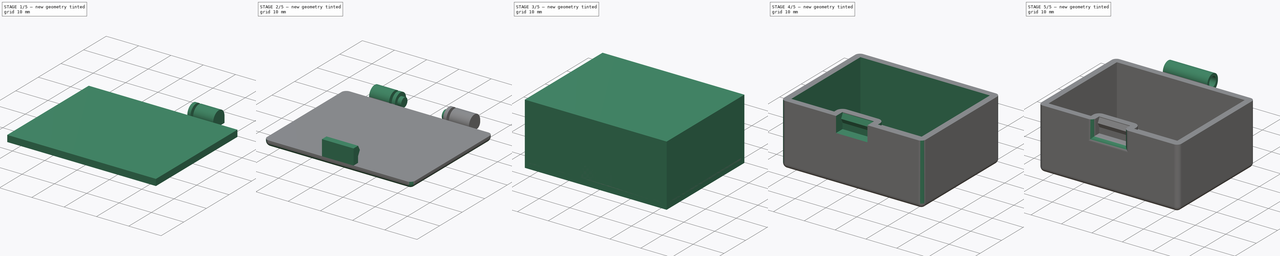
[diagram: build sequence overview — one tinted view per stage of 5, left to right]
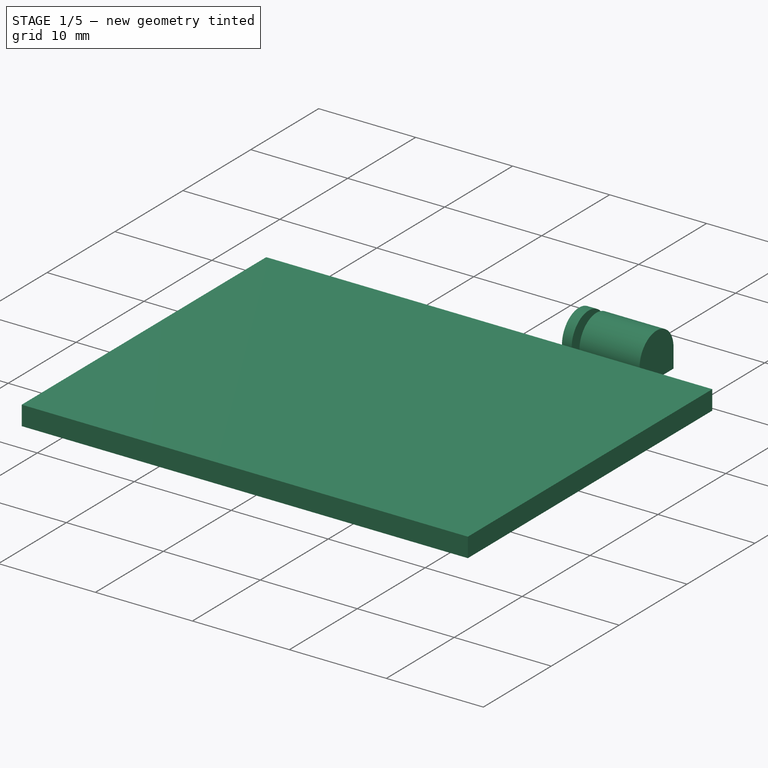
[diagram: stage 1 of 5 — iso view after this stage's code; geometry added in this stage tinted green]
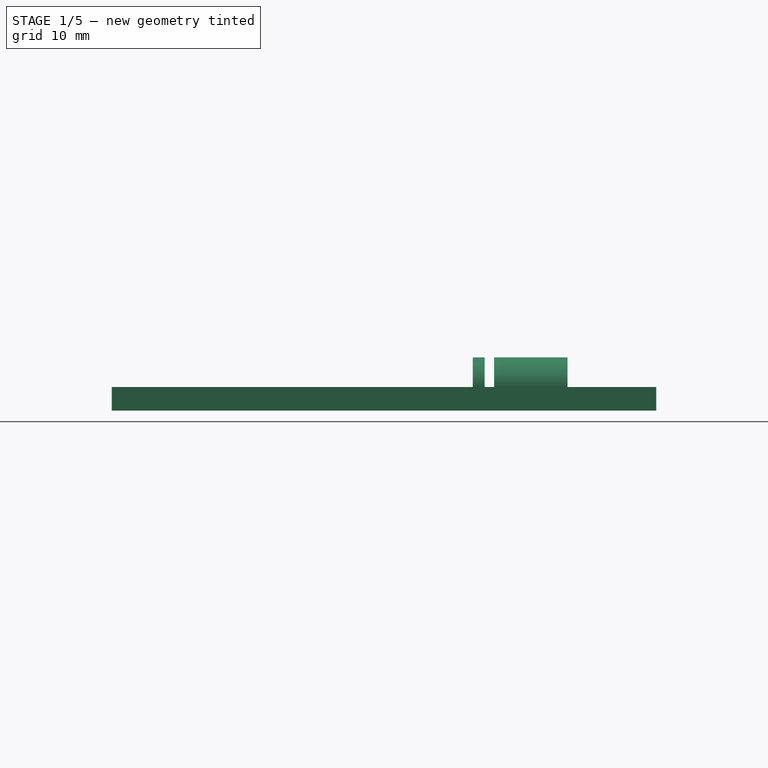
[diagram: stage 1 of 5 — front view after this stage's code; geometry added in this stage tinted green]
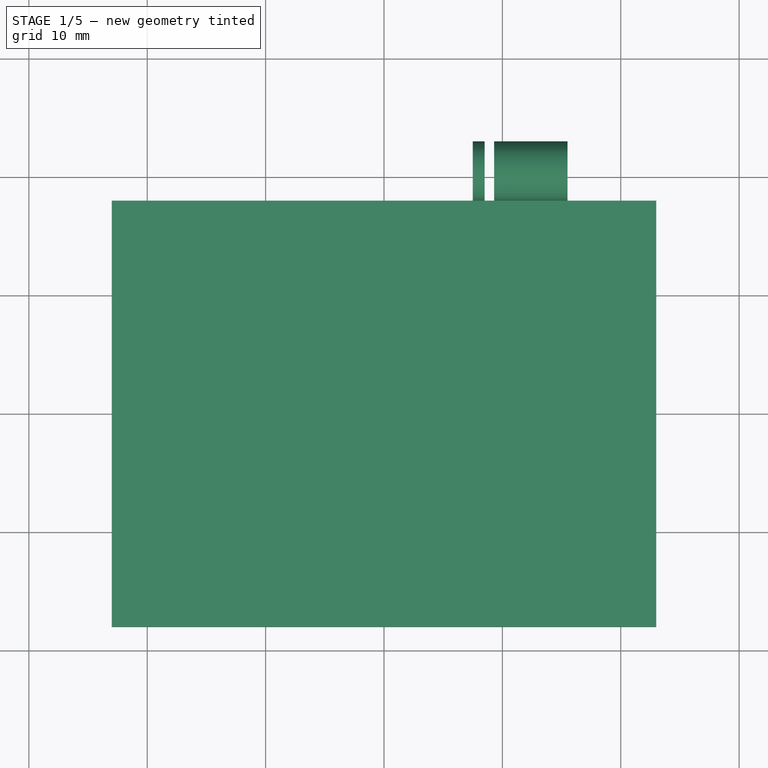
[diagram: stage 1 of 5 — top view after this stage's code; geometry added in this stage tinted green]
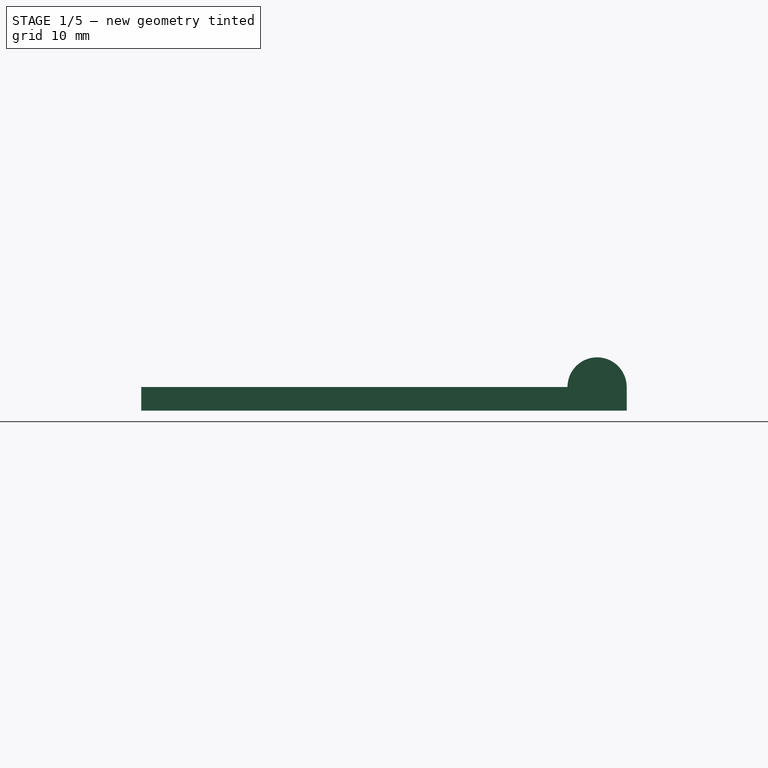
[diagram: stage 1 of 5 — right view after this stage's code; geometry added in this stage tinted green]
FCSTD DOCUMENT  (FreeCAD 1.0R39319 (Git))
Label: SquareSmallBoxWithHinge
License: All rights reserved
LicenseURL: https://en.wikipedia.org/wiki/All_rights_reserved
objects: Sketcher::SketchObject×7, PartDesign::Pad×6, PartDesign::Fillet×6, PartDesign::Body×2, App::VarSet×1, PartDesign::Pocket×1, PartDesign::Thickness×1, PartDesign::SubtractiveBox×1, PartDesign::AdditiveCylinder×1, PartDesign::Mirrored×1
note: 66 computed .brp shape members not serialized (recipe doc carries the construction recipe); baked Part::Feature solids carry a one-line shape summary decoded from their .brp

FEATURE [Sketcher::SketchObject] Sketch004
  ArcFitTolerance = 1e-06
  AttachmentSupport = -> [XY_Plane001]
  FullyConstrained = true
  MakeInternals = false
  MapMode = 5
  expr: Constraints[10] = VarSet.ExternalLenght
  expr: Constraints[11] = VarSet.ExternalWidth
  sketch-geometry (5):
    g0: LineSegment StartX=-23 StartY=18 StartZ=0 EndX=-23 EndY=-18 EndZ=0
    g1: LineSegment StartX=-23 StartY=-18 StartZ=0 EndX=23 EndY=-18 EndZ=0
    g2: LineSegment StartX=23 StartY=-18 StartZ=0 EndX=23 EndY=18 EndZ=0
    g3: LineSegment StartX=23 StartY=18 StartZ=0 EndX=-23 EndY=18 EndZ=0
    g4: GeomPoint [constr] X=0 Y=0 Z=0
  constraints (12):
    c: Coincident(g0,g1)
    c: Coincident(g1,g2)
    c: Coincident(g2,g3)
    c: Coincident(g3,g0)
    c: Vertical(g0)
    c: Vertical(g2)
    c: Horizontal(g1)
    c: Horizontal(g3)
    c: Symmetric(g2,g0,g4)
    c: Coincident(g4,g-1)
    c: DistanceX(g3,g3) = 46
    c: DistanceY(g0,g0) = 36
FEATURE [PartDesign::Pad] Pad003
  Direction = (0,0,1)
  Length = 2
  Length2 = 10
  Profile = -> Sketch004
  ReferenceAxis = -> Sketch004 [N_Axis]
  Refine = true
  Suppressed = false
  Type = 0
  expr: Length = VarSet.Thickness
FEATURE [Sketcher::SketchObject] Sketch005
  ArcFitTolerance = 1e-06
  AttachmentOffset = pos=(0,0,7.5) rot=(0,0,1;0rad)
  AttachmentSupport = -> [YZ_Plane001]
  ExternalGeometry = -> [Pad003]
  FullyConstrained = true
  MakeInternals = false
  MapMode = 5
  Placement = pos=(7.5,0,0) rot=(0.57735,0.57735,0.57735;2.0944rad)
  expr: .AttachmentOffset.Base.x = 0
  expr: .AttachmentOffset.Base.z = VarSet.HingeLength / 2
  expr: Constraints[2] = VarSet.HingeWidth
  expr: Constraints[5] = VarSet.HingeWidth / 2
  sketch-geometry (4):
    g0: LineSegment StartX=18 StartY=0 StartZ=0 EndX=18 EndY=2 EndZ=0
    g1: LineSegment StartX=18 StartY=0 StartZ=0 EndX=23 EndY=0 EndZ=0
    g2: LineSegment StartX=23 StartY=0 StartZ=0 EndX=23 EndY=2 EndZ=0
    g3: ArcOfCircle CenterX=20.5 CenterY=1.99998 CenterZ=0 NormalX=0 NormalY=0 NormalZ=1 AngleXU=0 Radius=2.5 StartAngle=6.84567e-06 EndAngle=3.14159
  constraints (11):
    c: Horizontal(g1)
    c: Vertical(g2)
    c: Distance(g1,g1) = 5
    c: Coincident(g3,g0)
    c: Coincident(g3,g2)
    c: Distance(g3,g2) = 2.5
    c: Coincident(g0,g1)
    c: Coincident(g-3,g0)
    c: Coincident(g1,g2)
    c: Equal(g0,g2)
    c: Coincident(g0,g-4)
FEATURE [PartDesign::Pad] Pad004
  BaseFeature = -> Pad003
  Direction = (1,0,0)
  Length = 8
  Length2 = 10
  Profile = -> Sketch005
  ReferenceAxis = -> Sketch005 [N_Axis]
  Refine = true
  Suppressed = false
  Type = 0
  expr: Length = VarSet.HingeTopLength
FEATURE [PartDesign::SubtractiveBox] Box
  AttacherType = Attacher::AttachEngine3D
  AttachmentOffset = pos=(0,0,-1.8) rot=(0,0,1;0rad)
  AttachmentSupport = -> [Pad004]
  BaseFeature = -> Pad004
  Height = 0.8
  Length = 5
  MapMode = 7
  Placement = pos=(9.3,23,0) rot=(0.57735,-0.57735,-0.57735;2.0944rad)
  Refine = true
  Suppressed = false
  Width = 4.5
  expr: .AttachmentOffset.Base.x = 0
  expr: .AttachmentOffset.Base.y = 0
  expr: .AttachmentOffset.Base.z = -VarSet.HingeCutPosition - VarSet.HingeCut
  expr: Height = VarSet.HingeCut
  expr: Length = VarSet.HingeWidth
  expr: Width = VarSet.Thickness + VarSet.HingeWidth / 2
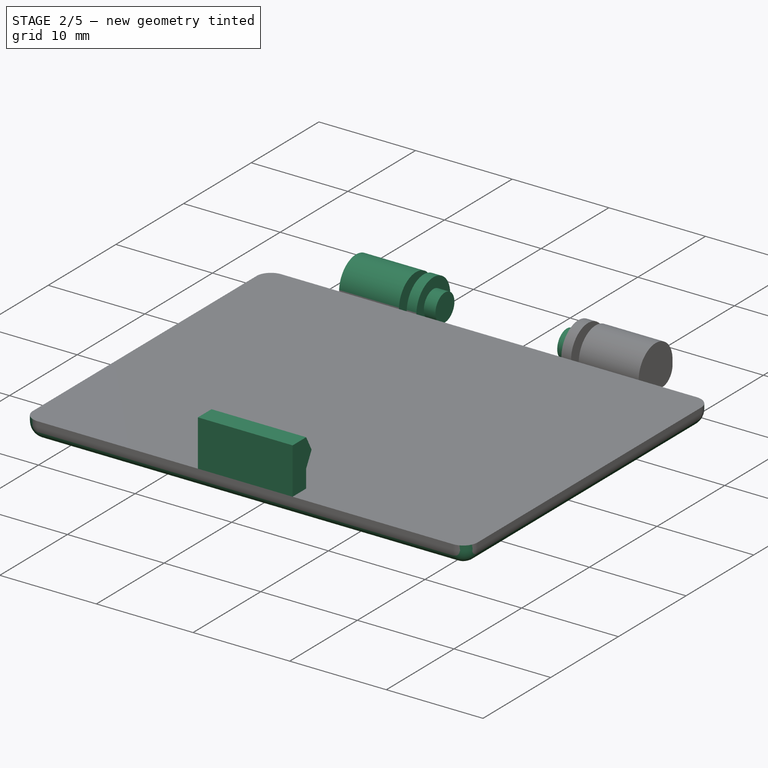
[diagram: stage 2 of 5 — iso view after this stage's code; geometry added in this stage tinted green]
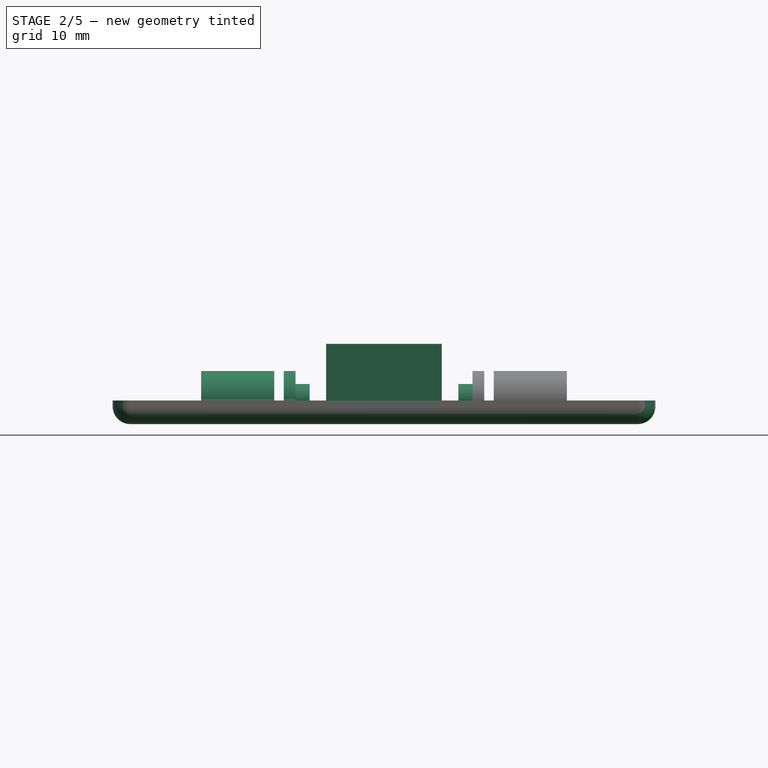
[diagram: stage 2 of 5 — front view after this stage's code; geometry added in this stage tinted green]
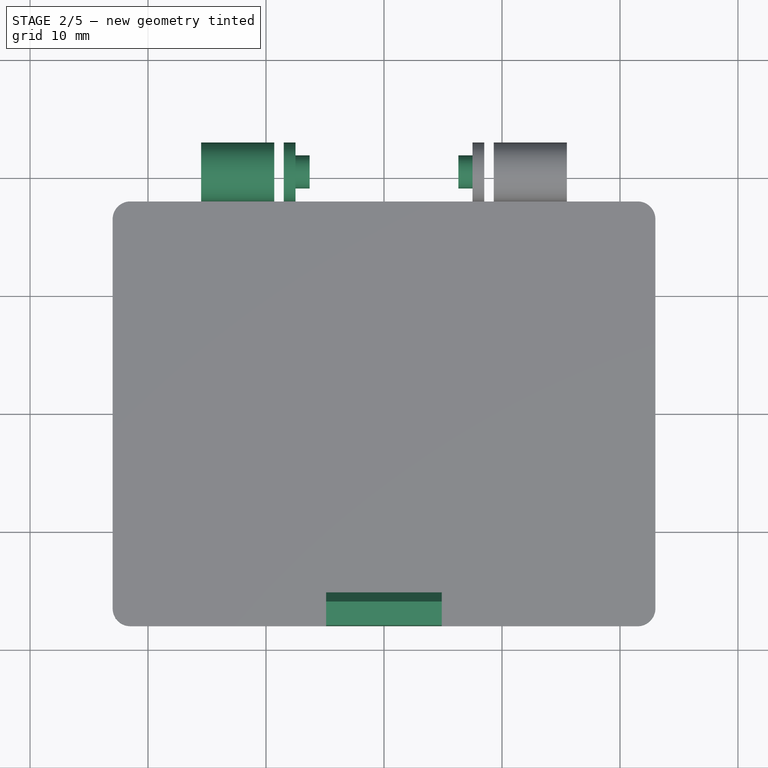
[diagram: stage 2 of 5 — top view after this stage's code; geometry added in this stage tinted green]
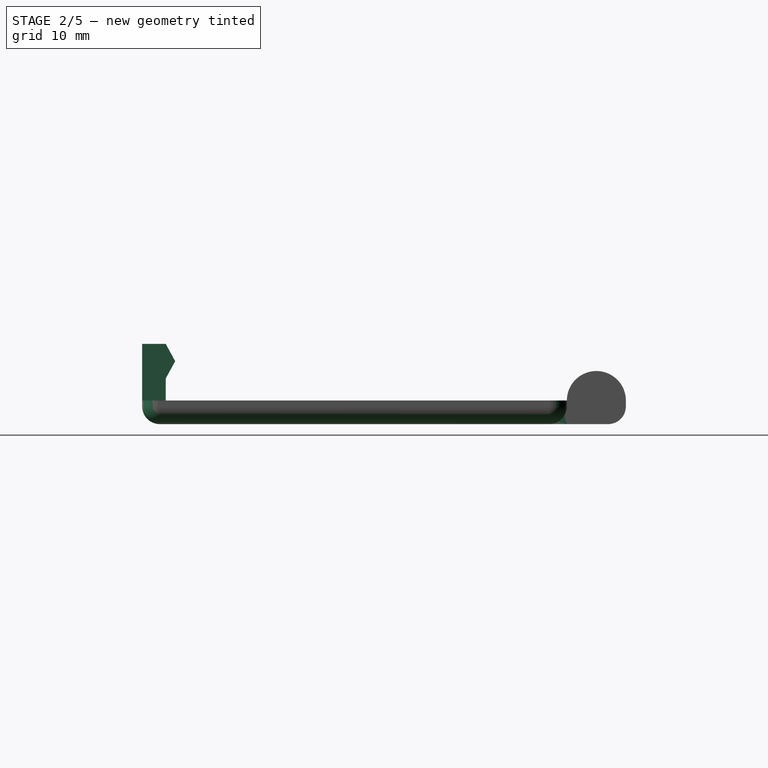
[diagram: stage 2 of 5 — right view after this stage's code; geometry added in this stage tinted green]
FEATURE [PartDesign::AdditiveCylinder] Cylinder
  Angle = 360
  AttacherType = Attacher::AttachEngine3D
  AttachmentOffset = pos=(2.5,2,0) rot=(0,0,1;0rad)
  AttachmentSupport = -> [Box]
  BaseFeature = -> Box
  FirstAngle = 0
  Height = 1.2
  MapMode = 5
  Placement = pos=(7.5,20.5,2) rot=(0.57735,-0.57735,-0.57735;2.0944rad)
  Radius = 1.4
  Refine = true
  SecondAngle = 0
  Suppressed = false
  expr: .AttachmentOffset.Base.x = VarSet.HingeWidth / 2
  expr: .AttachmentOffset.Base.y = VarSet.Thickness
  expr: Height = VarSet.HingeConnector + VarSet.MaterialBuffer
  expr: Radius = (VarSet.HingeHoleDiameter - VarSet.MaterialBuffer) / 2
FEATURE [PartDesign::Mirrored] Mirrored  label="TopHinge"
  BaseFeature = -> Cylinder
  MirrorPlane = -> YZ_Plane001
  Placement = pos=(7.5,20.5,2) rot=(0.57735,-0.57735,-0.57735;2.0944rad)
  Refine = true
  Suppressed = false
  TransformMode = 1
FEATURE [Sketcher::SketchObject] Sketch006
  ArcFitTolerance = 1e-06
  AttachmentSupport = -> [YZ_Plane001]
  ExternalGeometry = -> [Mirrored]
  FullyConstrained = true
  MakeInternals = false
  MapMode = 5
  Placement = pos=(0,0,0) rot=(0.57735,0.57735,0.57735;2.0944rad)
  expr: Constraints[16] = VarSet.PocketConnectorHeight
  expr: Constraints[7] = VarSet.PocketHeight - VarSet.MaterialBuffer
  expr: Constraints[8] = VarSet.PocketWidth - VarSet.PocketConnectorDepth
  expr: Constraints[9] = VarSet.PocketConnectorDepth - VarSet.MaterialBuffer
  sketch-geometry (6):
    g0: LineSegment StartX=-18 StartY=2 StartZ=0 EndX=-18 EndY=6.8 EndZ=0
    g1: LineSegment StartX=-15.2 StartY=5.33333 StartZ=0 EndX=-16 EndY=3.86667 EndZ=0
    g2: LineSegment StartX=-16 StartY=3.86667 StartZ=0 EndX=-16 EndY=2 EndZ=0
    g3: LineSegment StartX=-16 StartY=2 StartZ=0 EndX=-18 EndY=2 EndZ=0
    g4: LineSegment StartX=-18 StartY=6.8 StartZ=0 EndX=-16 EndY=6.8 EndZ=0
    g5: LineSegment StartX=-16 StartY=6.8 StartZ=0 EndX=-15.2 EndY=5.33333 EndZ=0
  constraints (17):
    c: Coincident(g0,g-3)
    c: Vertical(g0)
    c: Coincident(g1,g2)
    c: Vertical(g2)
    c: Coincident(g2,g3)
    c: Coincident(g3,g0)
    c: Horizontal(g3)
    c: DistanceY(g0,g0) = 4.8
    c: Distance(g3,g3) = 2
    c: DistanceX(g1,g1) = 0.8
    c: Coincident(g0,g4)
    c: Horizontal(g4)
    c: Coincident(g4,g5)
    c: Coincident(g5,g1)
    c: Equal(g3,g4)
    c: Equal(g5,g1)
    c: DistanceY(g1,g4) = 2.93333
FEATURE [PartDesign::Pad] Pad005  label="TopConnector"
  BaseFeature = -> Mirrored
  Direction = (1,0,0)
  Length = 9.8
  Length2 = 10
  Midplane = true
  Placement = pos=(7.5,20.5,2) rot=(0.57735,-0.57735,-0.57735;2.0944rad)
  Profile = -> Sketch006
  ReferenceAxis = -> Sketch006 [N_Axis]
  Refine = true
  Suppressed = false
  Type = 0
  expr: Length = VarSet.PocketLength - VarSet.PocketBuffer
FEATURE [PartDesign::Fillet] Fillet002
  Base = -> Pad005 [Edge23,Edge15,Edge5,Edge9,Edge13,Edge17,Edge21,Edge24,Edge25,Edge3,Edge2,Edge1,Edge42,Edge43]
  BaseFeature = -> Pad005
  Placement = pos=(7.5,20.5,2) rot=(0.57735,-0.57735,-0.57735;2.0944rad)
  Radius = 1.5
  Refine = true
  SupportTransform = false
  Suppressed = false
  UseAllEdges = false
  expr: Radius = VarSet.Fillet
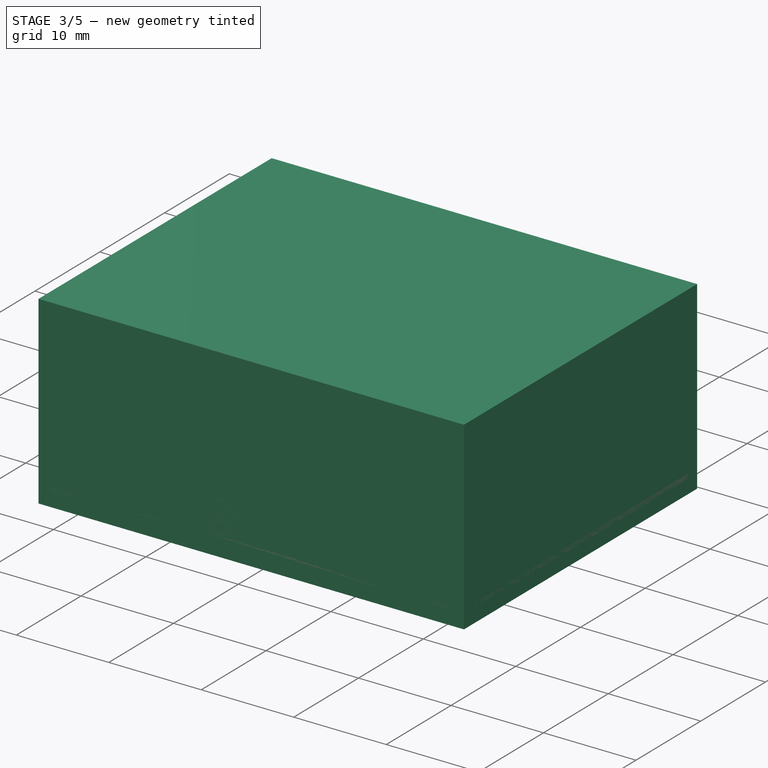
[diagram: stage 3 of 5 — iso view after this stage's code; geometry added in this stage tinted green]
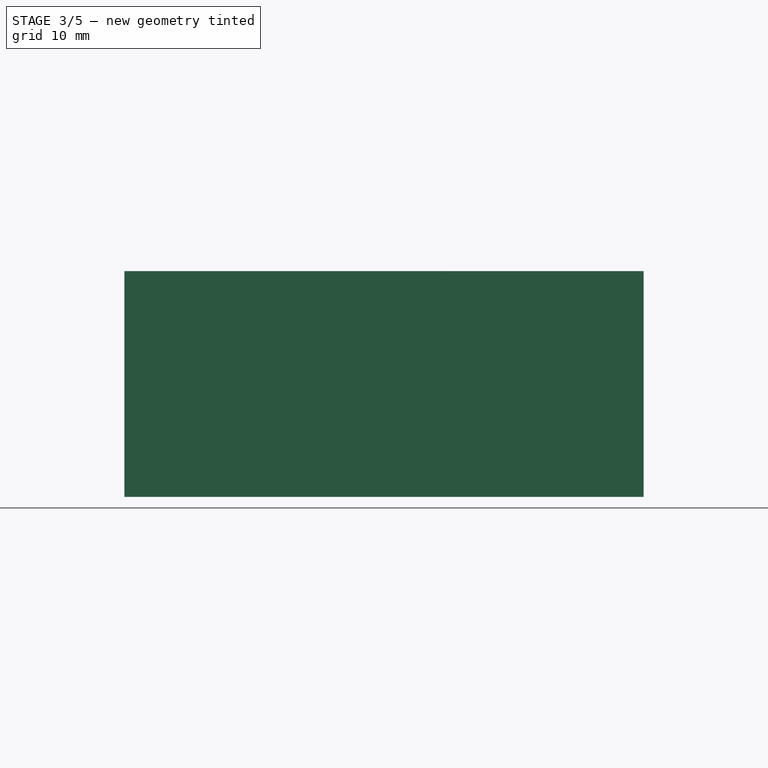
[diagram: stage 3 of 5 — front view after this stage's code; geometry added in this stage tinted green]
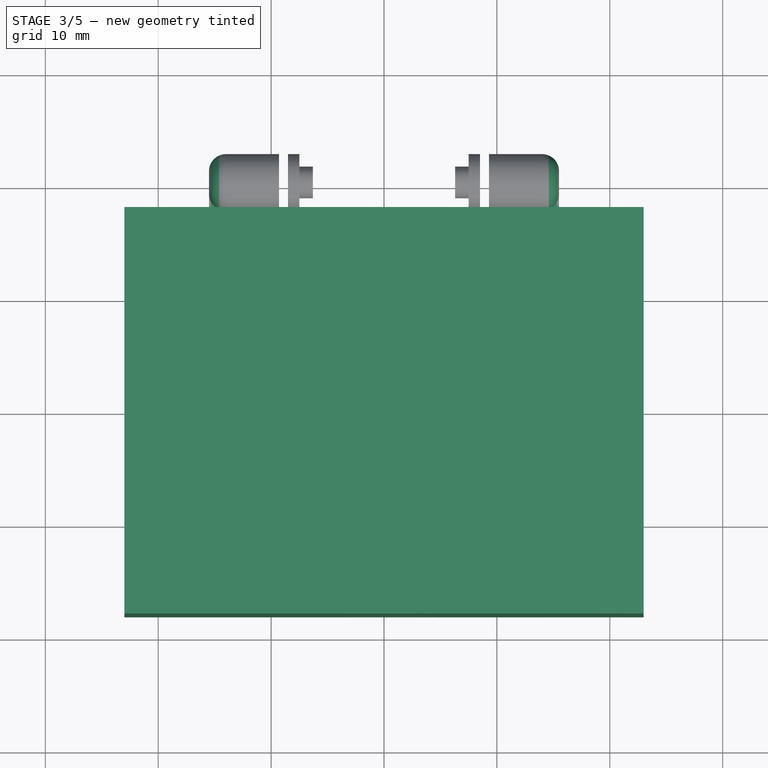
[diagram: stage 3 of 5 — top view after this stage's code; geometry added in this stage tinted green]
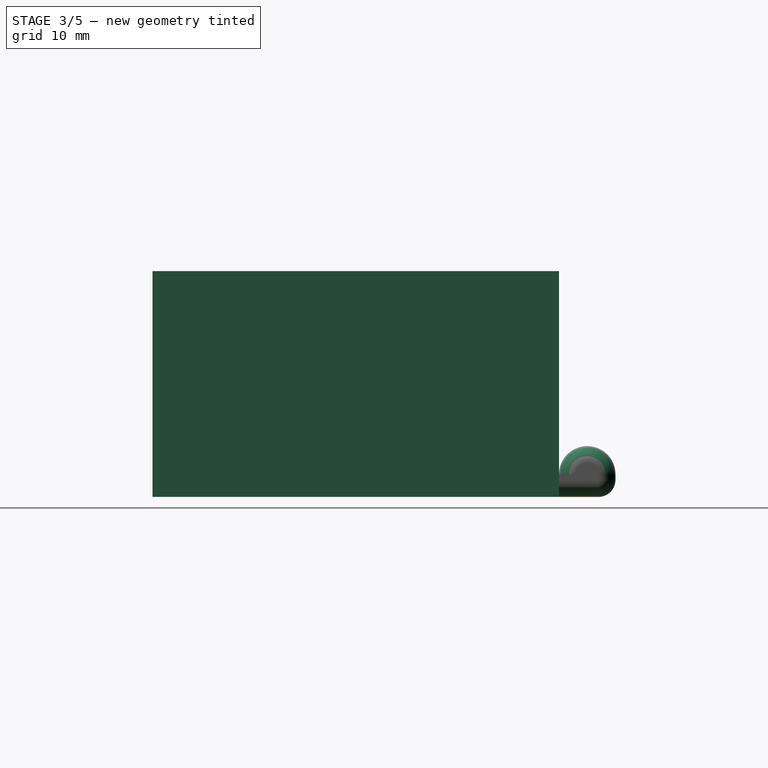
[diagram: stage 3 of 5 — right view after this stage's code; geometry added in this stage tinted green]
FEATURE [Sketcher::SketchObject] Sketch
  ArcFitTolerance = 1e-06
  AttachmentSupport = -> [XY_Plane]
  FullyConstrained = true
  MakeInternals = false
  MapMode = 5
  expr: Constraints[10] = VarSet.ExternalLenght
  expr: Constraints[11] = VarSet.ExternalWidth
  sketch-geometry (5):
    g0: LineSegment StartX=-23 StartY=18 StartZ=0 EndX=-23 EndY=-18 EndZ=0
    g1: LineSegment StartX=-23 StartY=-18 StartZ=0 EndX=23 EndY=-18 EndZ=0
    g2: LineSegment StartX=23 StartY=-18 StartZ=0 EndX=23 EndY=18 EndZ=0
    g3: LineSegment StartX=23 StartY=18 StartZ=0 EndX=-23 EndY=18 EndZ=0
    g4: GeomPoint [constr] X=0 Y=0 Z=0
  constraints (12):
    c: Coincident(g0,g1)
    c: Coincident(g1,g2)
    c: Coincident(g2,g3)
    c: Coincident(g3,g0)
    c: Vertical(g0)
    c: Vertical(g2)
    c: Horizontal(g1)
    c: Horizontal(g3)
    c: Symmetric(g2,g0,g4)
    c: Coincident(g4,g-1)
    c: DistanceX(g3,g3) = 46
    c: DistanceY(g0,g0) = 36
FEATURE [App::VarSet] VarSet
  ExternalHeight = 20
  ExternalLenght = 46
  ExternalWidth = 36
  Fillet = 1.5
  HingeConnector = 1
  HingeConnectorThickness = 1
  HingeCut = 0.8
  HingeCutPosition = 1
  HingeHeight = 3
  HingeHoleDiameter = 3
  HingeLength = 15
  HingeTopLength = 8
  HingeWidth = 5
  MaterialBuffer = 0.2
  PocketBuffer = 0.2
  PocketConnectorDepth = 1
  PocketConnectorHeight = 2.93333
  PocketHeight = 5
  PocketLength = 10
  PocketWidth = 3
  Thickness = 2
  expr: PocketConnectorHeight = (PocketHeight - MaterialBuffer * 3) * 2 / 3
FEATURE [PartDesign::Pad] Pad
  Direction = (0,0,1)
  Length = 20
  Length2 = 10
  Profile = -> Sketch
  ReferenceAxis = -> Sketch [N_Axis]
  Refine = true
  Suppressed = false
  Type = 0
  expr: Length = VarSet.ExternalHeight
FEATURE [PartDesign::Body] Body  label="Bottom"
  AllowCompound = false
  Group = -> [Sketch,Pad,Sketch001,Pocket,Thickness,Fillet,Sketch002,Pad001,Sketch003,Pad002,Fillet001,Fillet003]
  Origin = -> Origin
  Tip = -> Fillet003
FEATURE [PartDesign::Fillet] Fillet004
  Base = -> Fillet002 [Edge62,Edge50]
  BaseFeature = -> Fillet002
  Placement = pos=(7.5,20.5,2) rot=(0.57735,-0.57735,-0.57735;2.0944rad)
  Radius = 1.5
  Refine = true
  SupportTransform = false
  Suppressed = false
  UseAllEdges = false
  expr: Radius = VarSet.Fillet
FEATURE [PartDesign::Fillet] Fillet005
  Base = -> Fillet004 [Edge76,Edge57]
  BaseFeature = -> Fillet004
  Placement = pos=(7.5,20.5,2) rot=(0.57735,-0.57735,-0.57735;2.0944rad)
  Radius = 1.5
  Refine = true
  SupportTransform = false
  Suppressed = false
  UseAllEdges = false
  expr: Radius = VarSet.Fillet
FEATURE [PartDesign::Body] Body001  label="Top"
  AllowCompound = false
  Group = -> [Sketch004,Pad003,Sketch005,Pad004,Box,Cylinder,Mirrored,Sketch006,Pad005,Fillet002,Fillet004,Fillet005]
  Origin = -> Origin001
  Placement = pos=(0,-45,0) rot=(0,0,1;0rad)
  Tip = -> Fillet005
  expr: .Placement.Base.y = -(VarSet.Thickness + VarSet.ExternalWidth + VarSet.HingeWidth + VarSet.Thickness)
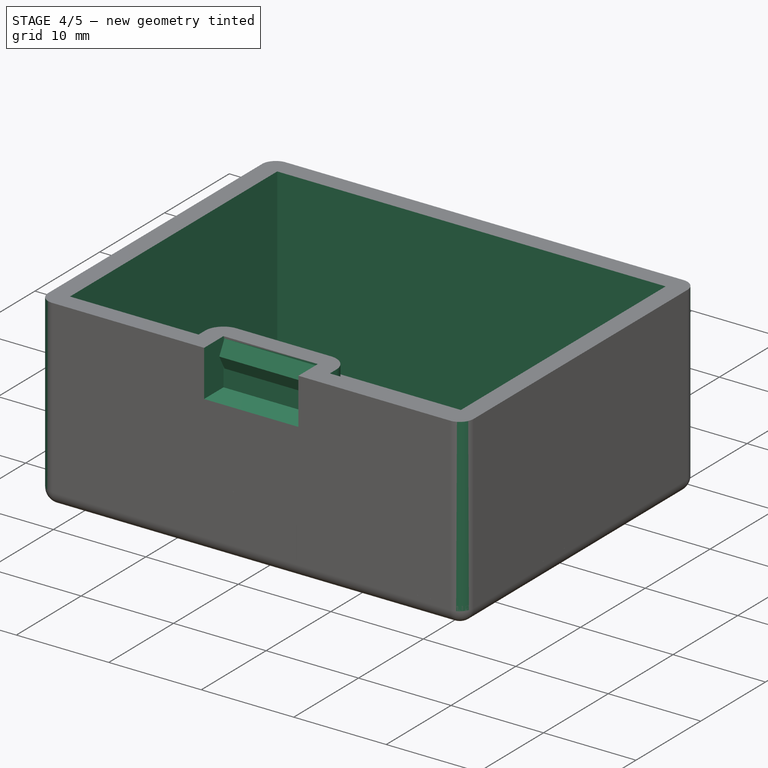
[diagram: stage 4 of 5 — iso view after this stage's code; geometry added in this stage tinted green]
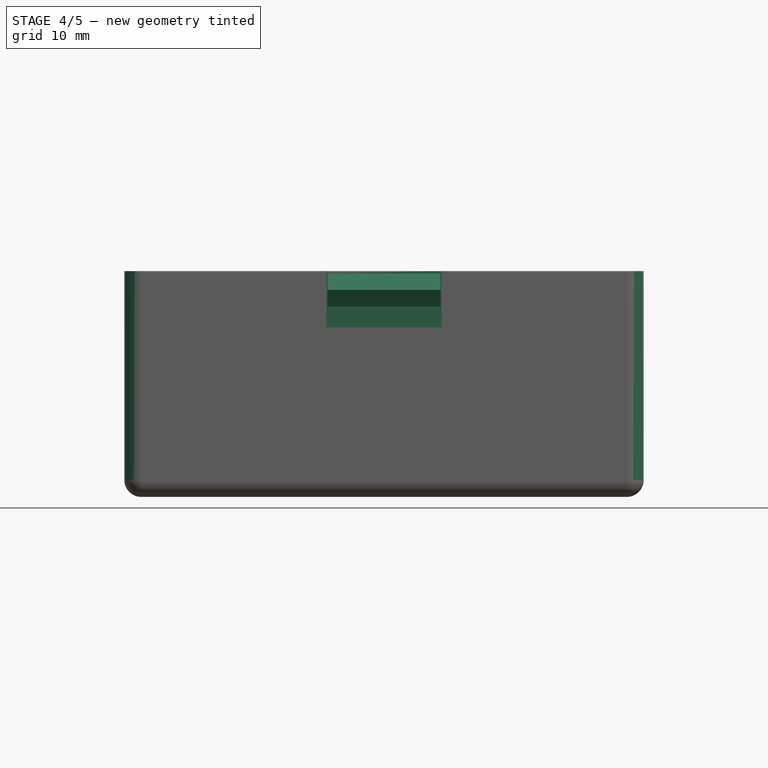
[diagram: stage 4 of 5 — front view after this stage's code; geometry added in this stage tinted green]
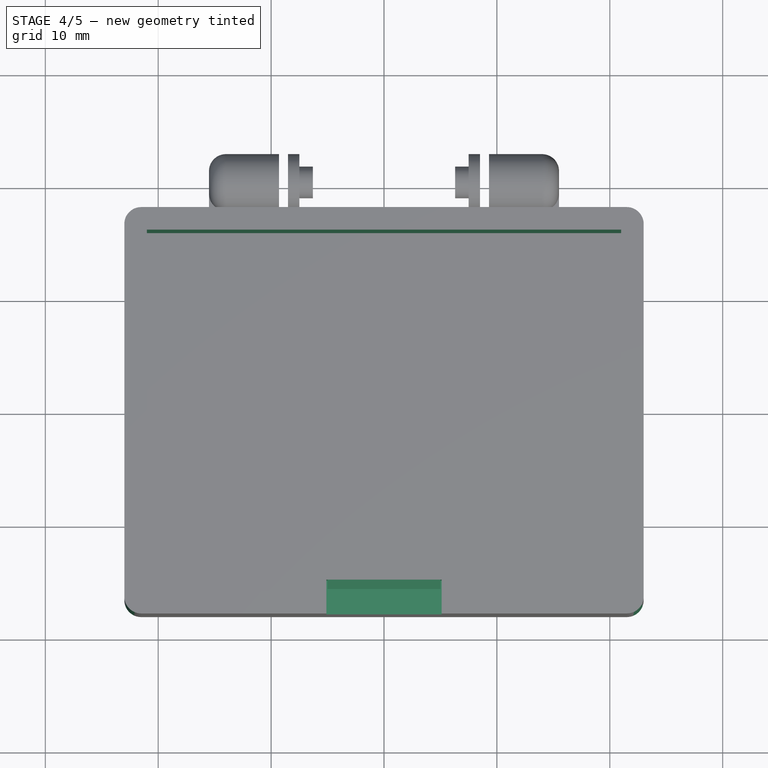
[diagram: stage 4 of 5 — top view after this stage's code; geometry added in this stage tinted green]
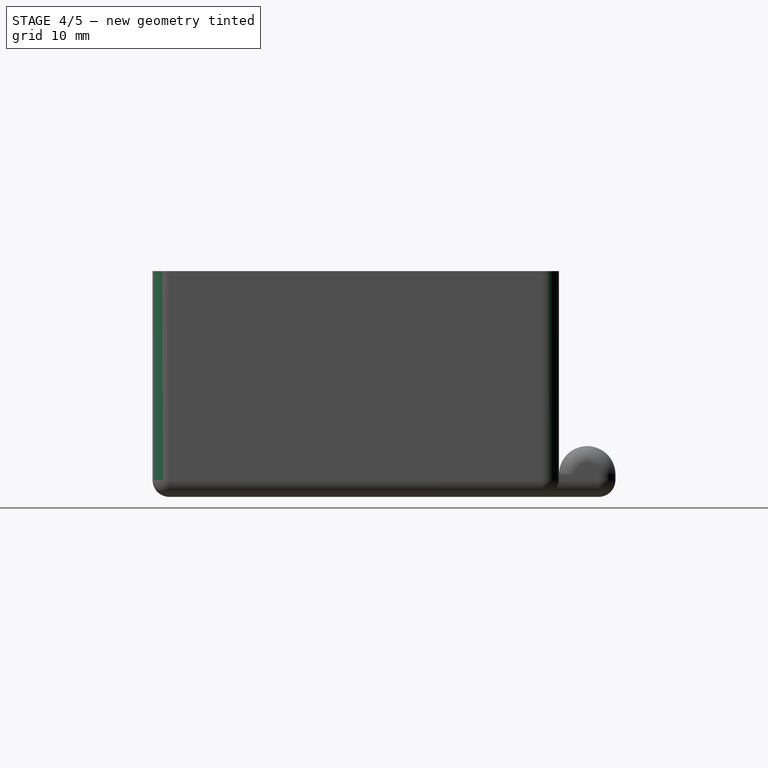
[diagram: stage 4 of 5 — right view after this stage's code; geometry added in this stage tinted green]
FEATURE [Sketcher::SketchObject] Sketch001
  ArcFitTolerance = 1e-06
  AttachmentSupport = -> [YZ_Plane]
  ExternalGeometry = -> [Pad]
  FullyConstrained = true
  MakeInternals = false
  MapMode = 5
  Placement = pos=(0,0,0) rot=(0.57735,0.57735,0.57735;2.0944rad)
  expr: Constraints[8] = VarSet.PocketWidth
  expr: Constraints[9] = VarSet.PocketHeight
  sketch-geometry (4):
    g0: LineSegment StartX=-18 StartY=20 StartZ=0 EndX=-18 EndY=15 EndZ=0
    g1: LineSegment StartX=-18 StartY=15 StartZ=0 EndX=-15 EndY=15 EndZ=0
    g2: LineSegment StartX=-15 StartY=15 StartZ=0 EndX=-15 EndY=20 EndZ=0
    g3: LineSegment StartX=-15 StartY=20 StartZ=0 EndX=-18 EndY=20 EndZ=0
  constraints (11):
    c: Coincident(g0,g1)
    c: Coincident(g1,g2)
    c: Coincident(g2,g3)
    c: Coincident(g3,g0)
    c: Vertical(g0)
    c: Horizontal(g1)
    c: Horizontal(g3)
    c: Coincident(g0,g-3)
    c: Distance(g3,g3) = 3
    c: DistanceY(g0,g0) = 5
    c: Vertical(g2)
FEATURE [PartDesign::Pocket] Pocket
  BaseFeature = -> Pad
  Direction = (-1,0,0)
  Length = 5.1
  Length2 = 5.1
  Profile = -> Sketch001
  ReferenceAxis = -> Sketch001 [N_Axis]
  Refine = true
  Suppressed = false
  Type = 4
  expr: Length = (VarSet.PocketLength + VarSet.PocketBuffer) / 2
  expr: Length2 = (VarSet.PocketLength + VarSet.PocketBuffer) / 2
FEATURE [PartDesign::Thickness] Thickness
  Base = -> Pocket [Face5]
  BaseFeature = -> Pocket
  Intersection = true
  Join = 0
  Mode = 0
  Refine = true
  Reversed = true
  SupportTransform = false
  Suppressed = false
  Value = 2
  expr: Value = VarSet.Thickness
FEATURE [PartDesign::Fillet] Fillet
  Base = -> Thickness [Edge9,Edge2,Edge5,Edge1,Face4]
  BaseFeature = -> Thickness
  Radius = 1.5
  Refine = true
  SupportTransform = false
  Suppressed = false
  UseAllEdges = false
  expr: Radius = VarSet.Fillet
FEATURE [Sketcher::SketchObject] Sketch002
  ArcFitTolerance = 1e-06
  AttachmentSupport = -> [YZ_Plane]
  ExternalGeometry = -> [Sketch001]
  FullyConstrained = true
  MakeInternals = false
  MapMode = 5
  Placement = pos=(0,0,0) rot=(0.57735,0.57735,0.57735;2.0944rad)
  expr: Constraints[2] = VarSet.PocketConnectorHeight
  expr: Constraints[3] = VarSet.PocketHeight - VarSet.MaterialBuffer - VarSet.PocketConnectorHeight
  expr: Constraints[7] = VarSet.MaterialBuffer
  expr: Constraints[8] = VarSet.PocketConnectorDepth - VarSet.MaterialBuffer
  sketch-geometry (3):
    g0: LineSegment StartX=-15 StartY=19.8 StartZ=0 EndX=-15.8 EndY=18.3333 EndZ=0
    g1: LineSegment StartX=-15 StartY=16.8667 StartZ=0 EndX=-15 EndY=19.8 EndZ=0
    g2: LineSegment StartX=-15 StartY=16.8667 StartZ=0 EndX=-15.8 EndY=18.3333 EndZ=0
  constraints (9):
    c: Coincident(g1,g0)
    c: Vertical(g1)
    c: DistanceY(g1,g1) = 2.93333
    c: Distance(g1,g-3) = 1.86667
    c: Coincident(g2,g1)
    c: Coincident(g2,g0)
    c: Equal(g0,g2)
    c: DistanceY(g0,g-3) = 0.2
    c: Distance(g0,g1) = 0.8
FEATURE [PartDesign::Pad] Pad001  label="Connector"
  BaseFeature = -> Fillet
  Direction = (1,0,0)
  Length = 5
  Length2 = 5
  Profile = -> Sketch002
  ReferenceAxis = -> Sketch002 [N_Axis]
  Refine = true
  Suppressed = false
  Type = 4
  expr: Length = VarSet.PocketLength / 2
  expr: Length2 = VarSet.PocketLength / 2
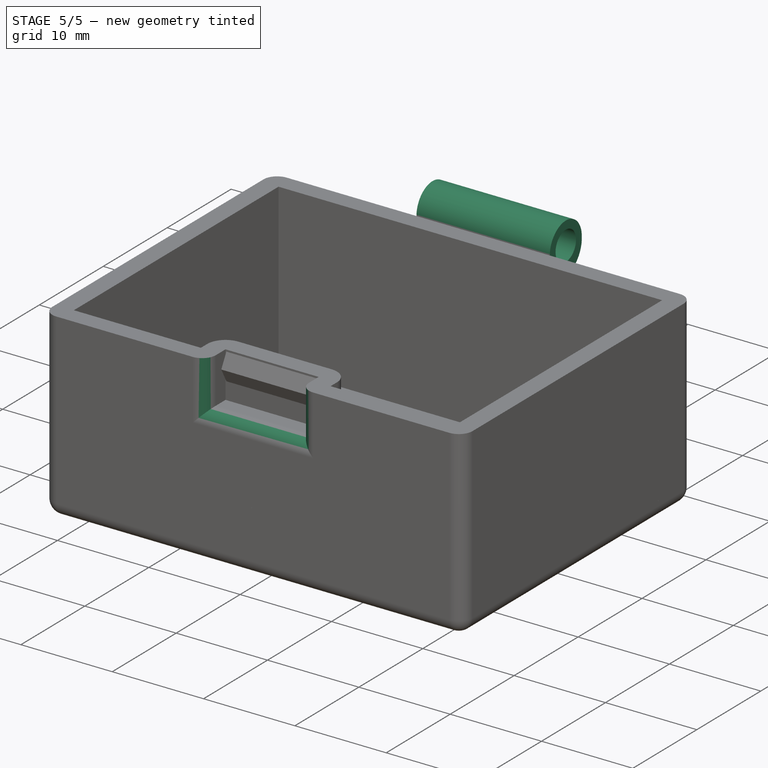
[diagram: stage 5 of 5 — iso view after this stage's code; geometry added in this stage tinted green]
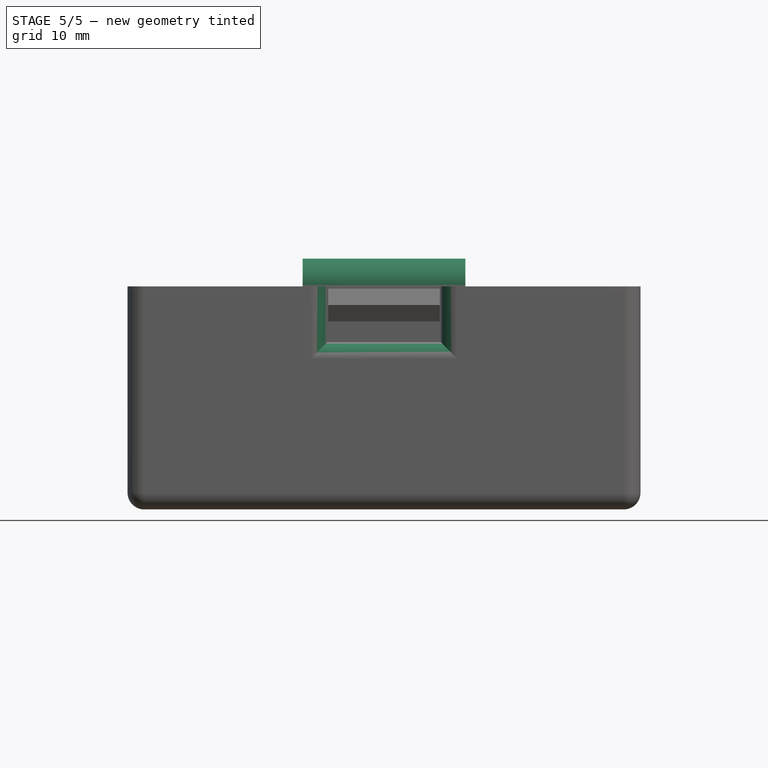
[diagram: stage 5 of 5 — front view after this stage's code; geometry added in this stage tinted green]
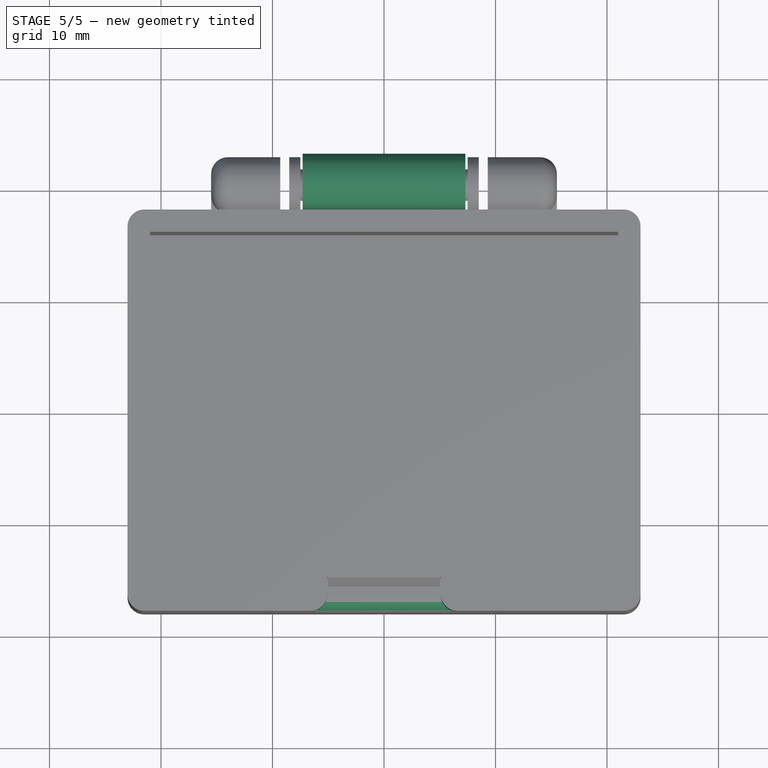
[diagram: stage 5 of 5 — top view after this stage's code; geometry added in this stage tinted green]
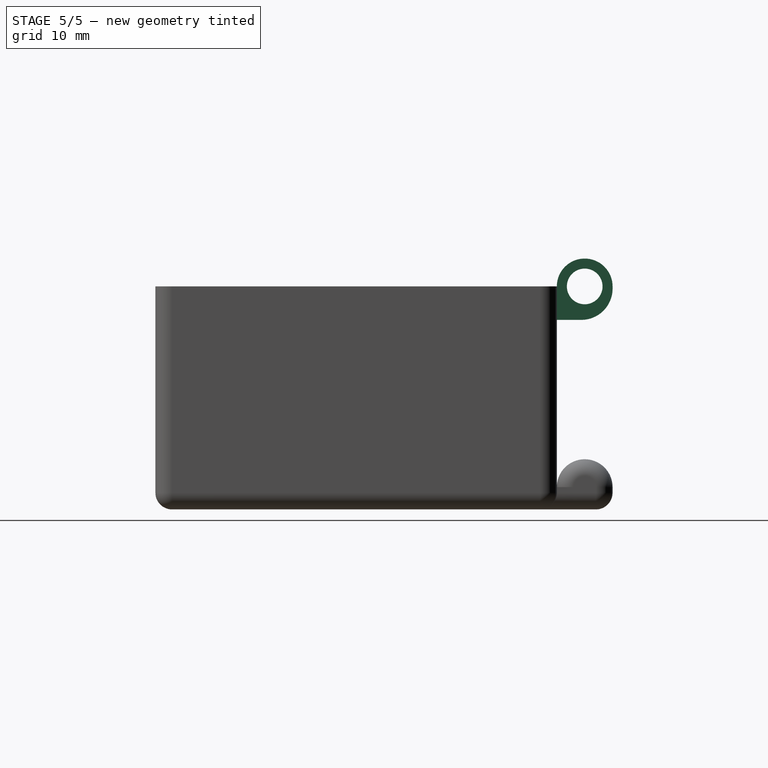
[diagram: stage 5 of 5 — right view after this stage's code; geometry added in this stage tinted green]
FEATURE [Sketcher::SketchObject] Sketch003
  ArcFitTolerance = 1e-06
  AttachmentSupport = -> [YZ_Plane]
  ExternalGeometry = -> [Pad]
  FullyConstrained = true
  MakeInternals = false
  MapMode = 5
  Placement = pos=(0,0,0) rot=(0.57735,0.57735,0.57735;2.0944rad)
  expr: Constraints[10] = VarSet.HingeWidth
  expr: Constraints[11] = VarSet.HingeHeight
  expr: Constraints[13] = VarSet.HingeHoleDiameter + VarSet.MaterialBuffer
  expr: Constraints[9] = VarSet.HingeHeight
  sketch-geometry (5):
    g0: LineSegment StartX=18 StartY=20 StartZ=0 EndX=18 EndY=17 EndZ=0
    g1: LineSegment StartX=18 StartY=17 StartZ=0 EndX=23 EndY=17 EndZ=0
    g2: LineSegment StartX=23 StartY=17 StartZ=0 EndX=23 EndY=20 EndZ=0
    g3: ArcOfCircle CenterX=20.5 CenterY=20 CenterZ=0 NormalX=0 NormalY=0 NormalZ=1 AngleXU=0 Radius=2.5 StartAngle=4e-16 EndAngle=3.14159
    g4: Circle CenterX=20.5 CenterY=20 CenterZ=0 NormalX=0 NormalY=0 NormalZ=1 AngleXU=0 Radius=1.6
  constraints (14):
    c: Coincident(g0,g-3)
    c: Vertical(g0)
    c: Coincident(g0,g1)
    c: Horizontal(g1)
    c: Coincident(g1,g2)
    c: Vertical(g2)
    c: Coincident(g3,g2)
    c: Coincident(g0,g3)
    c: Equal(g2,g0)
    c: Distance(g2,g2) = 3
    c: Distance(g1,g1) = 5
    c: Distance(g3,g1) = 3
    c: Coincident(g4,g3)
    c: Diameter(g4) = 3.2
FEATURE [PartDesign::Pad] Pad002  label="Hinge"
  BaseFeature = -> Pad001
  Direction = (1,0,0)
  Length = 14.6
  Length2 = 7.3
  Midplane = true
  Profile = -> Sketch003
  ReferenceAxis = -> Sketch003 [N_Axis]
  Refine = true
  Suppressed = false
  Type = 0
  expr: Length = VarSet.HingeLength - VarSet.MaterialBuffer * 2
FEATURE [PartDesign::Fillet] Fillet001
  Base = -> Pad002 [Edge95]
  BaseFeature = -> Pad002
  Radius = 2.8
  Refine = true
  SupportTransform = false
  Suppressed = false
  UseAllEdges = false
  expr: Radius = VarSet.HingeHeight - VarSet.MaterialBuffer
FEATURE [PartDesign::Fillet] Fillet003
  Base = -> Fillet001 [Edge69,Edge70,Edge67]
  BaseFeature = -> Fillet001
  Radius = 1.5
  Refine = true
  SupportTransform = false
  Suppressed = false
  UseAllEdges = false
  expr: Radius = VarSet.Fillet
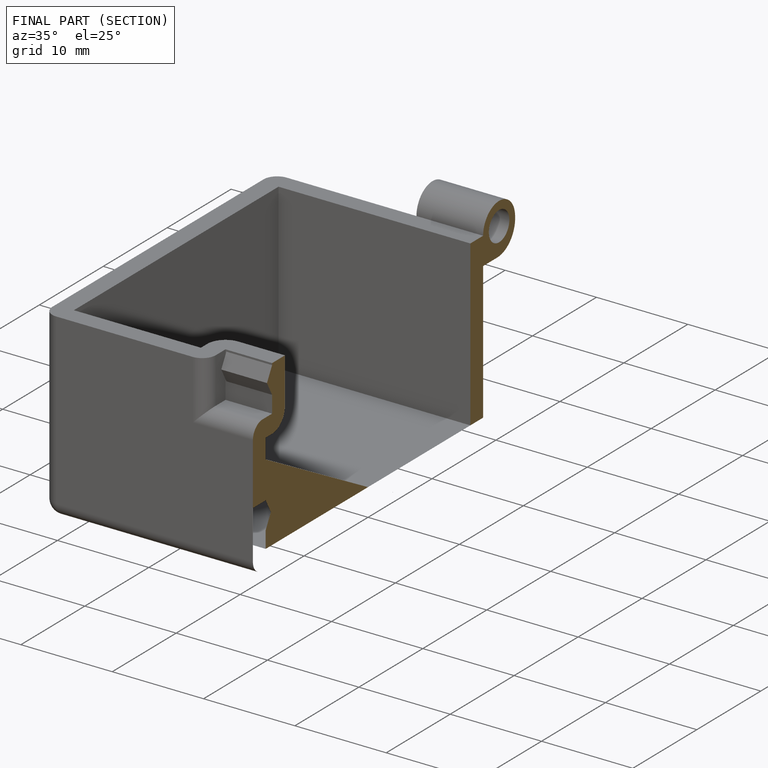
[diagram: finished part — half-section view (interior)]
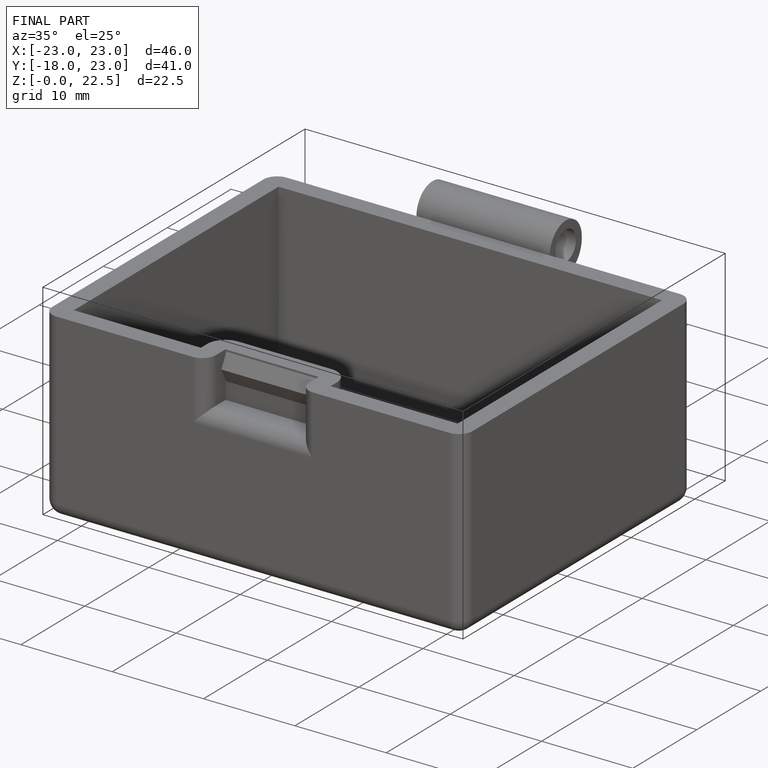
[diagram: finished part — iso view with bounding-box wireframe]
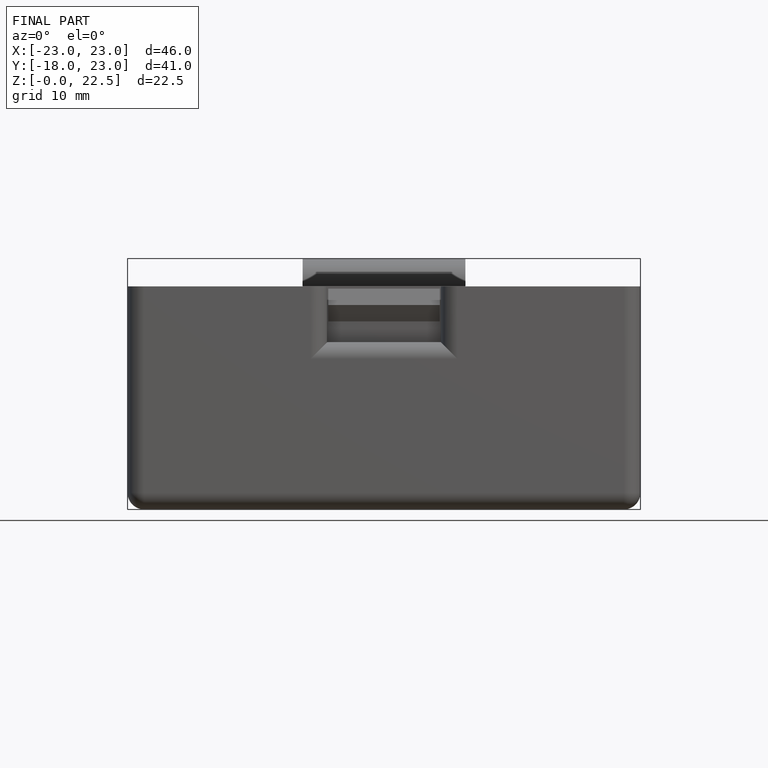
[diagram: finished part — front view with bounding-box wireframe]
